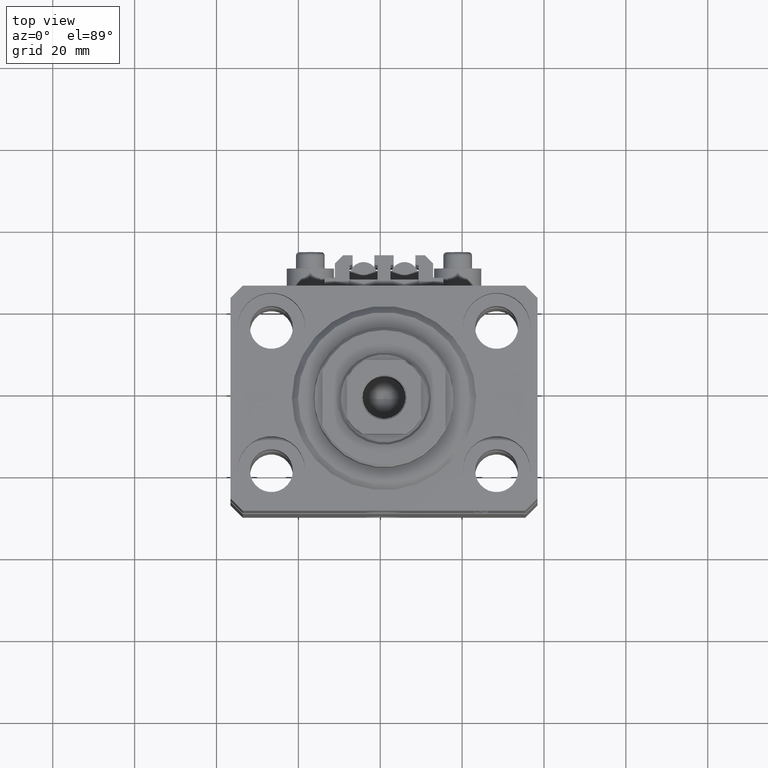
[diagram: clean part render]
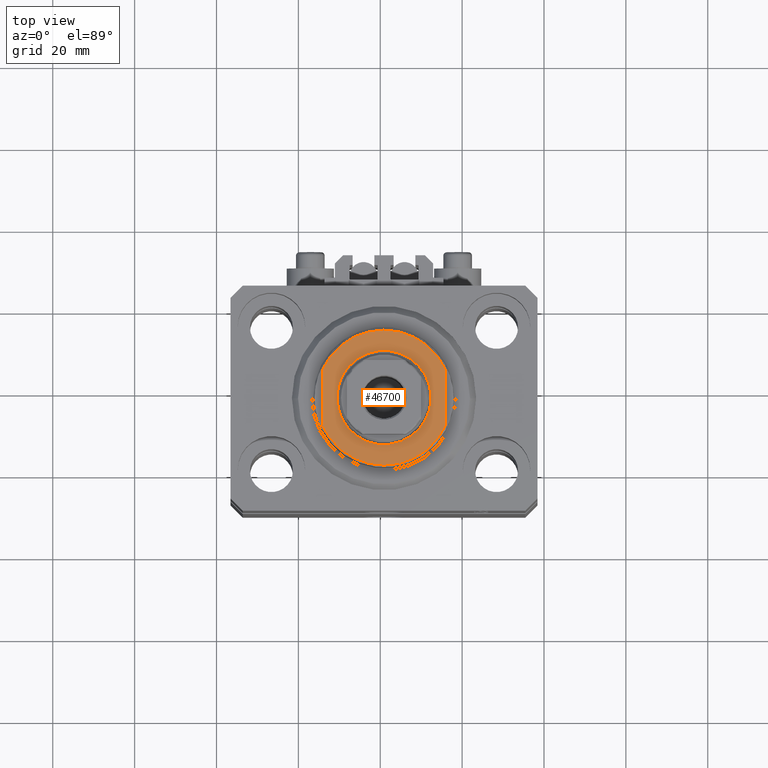
[diagram: same view with one face highlighted and labeled with its STEP entity id]
A machine part, top view. The second image highlights one B-rep face of the part: STEP entity #46700.
In plain terms, the highlighted planar face has unit normal (0, 0, 1).
Its self-contained STEP definition (entity closure, byte-faithful):
#525 = VERTEX_POINT ( 'NONE', #43512 ) ;
#949 = VERTEX_POINT ( 'NONE', #10566 ) ;
#1073 = ORIENTED_EDGE ( 'NONE', *, *, #18223, .T. ) ;
#2415 = EDGE_CURVE ( 'NONE', #36443, #42790, #34471, .T. ) ;
#2782 = DIRECTION ( 'NONE',  ( -0.000000000000000000, -0.000000000000000000, 1.000000000000000000 ) ) ;
#3260 = CARTESIAN_POINT ( 'NONE',  ( 0.000000000000000000, 0.000000000000000000, -8.000000000000000000 ) ) ;
#3401 = ORIENTED_EDGE ( 'NONE', *, *, #8841, .T. ) ;
#3919 = EDGE_LOOP ( 'NONE', ( #22346, #1073, #3401, #10840 ) ) ;
#5791 = DIRECTION ( 'NONE',  ( 0.000000000000000000, -1.000000000000000000, -0.000000000000000000 ) ) ;
#6167 = DIRECTION ( 'NONE',  ( 0.000000000000000000, 0.000000000000000000, -1.000000000000000000 ) ) ;
#7159 = DIRECTION ( 'NONE',  ( -1.000000000000000000, 0.000000000000000000, 0.000000000000000000 ) ) ;
#7283 = VECTOR ( 'NONE', #28034, 1000.000000000000000 ) ;
#7455 = AXIS2_PLACEMENT_3D ( 'NONE', #46164, #24482, #17414 ) ;
#7500 = CARTESIAN_POINT ( 'NONE',  ( -11.50000000000000355, 0.000000000000000000, -8.000000000000000000 ) ) ;
#8145 = CARTESIAN_POINT ( 'NONE',  ( 0.000000000000000000, 0.000000000000000000, -8.000000000000000000 ) ) ;
#8841 = EDGE_CURVE ( 'NONE', #949, #525, #28455, .T. ) ;
#9821 = PLANE ( 'NONE',  #19082 ) ;
#10566 = CARTESIAN_POINT ( 'NONE',  ( 14.99999999999999645, -6.873863542433765517, -8.000000000000000000 ) ) ;
#10840 = ORIENTED_EDGE ( 'NONE', *, *, #42666, .F. ) ;
#11139 = AXIS2_PLACEMENT_3D ( 'NONE', #3260, #2782, #7159 ) ;
#12303 = VECTOR ( 'NONE', #5791, 1000.000000000000000 ) ;
#12989 = FACE_BOUND ( 'NONE', #15102, .T. ) ;
#15102 = EDGE_LOOP ( 'NONE', ( #30442, #37028 ) ) ;
#15543 = CIRCLE ( 'NONE', #21771, 16.50000000000000000 ) ;
#15975 = EDGE_CURVE ( 'NONE', #42790, #36443, #38702, .T. ) ;
#17414 = DIRECTION ( 'NONE',  ( -1.000000000000000000, 0.000000000000000000, 0.000000000000000000 ) ) ;
#18223 = EDGE_CURVE ( 'NONE', #35896, #949, #27963, .T. ) ;
#19082 = AXIS2_PLACEMENT_3D ( 'NONE', #35642, #6167, #20548 ) ;
#20490 = LINE ( 'NONE', #27551, #7283 ) ;
#20548 = DIRECTION ( 'NONE',  ( -1.000000000000000000, 0.000000000000000000, -0.000000000000000000 ) ) ;
#20561 = EDGE_CURVE ( 'NONE', #38007, #35896, #15543, .T. ) ;
#21771 = AXIS2_PLACEMENT_3D ( 'NONE', #43177, #31306, #35870 ) ;
#22346 = ORIENTED_EDGE ( 'NONE', *, *, #20561, .T. ) ;
#24482 = DIRECTION ( 'NONE',  ( 0.000000000000000000, 0.000000000000000000, -1.000000000000000000 ) ) ;
#27551 = CARTESIAN_POINT ( 'NONE',  ( -15.00000000000000000, -42.42640687119285303, -8.000000000000000000 ) ) ;
#27963 = LINE ( 'NONE', #38684, #12303 ) ;
#28034 = DIRECTION ( 'NONE',  ( -0.000000000000000000, -1.000000000000000000, -0.000000000000000000 ) ) ;
#28455 = CIRCLE ( 'NONE', #7455, 16.50000000000000000 ) ;
#30442 = ORIENTED_EDGE ( 'NONE', *, *, #2415, .T. ) ;
#31036 = DIRECTION ( 'NONE',  ( -1.000000000000000000, 0.000000000000000000, 0.000000000000000000 ) ) ;
#31306 = DIRECTION ( 'NONE',  ( 0.000000000000000000, 0.000000000000000000, -1.000000000000000000 ) ) ;
#34471 = CIRCLE ( 'NONE', #11139, 11.50000000000000355 ) ;
#35642 = CARTESIAN_POINT ( 'NONE',  ( 0.000000000000000000, 0.000000000000000000, -8.000000000000000000 ) ) ;
#35870 = DIRECTION ( 'NONE',  ( -1.000000000000000000, 0.000000000000000000, 0.000000000000000000 ) ) ;
#35896 = VERTEX_POINT ( 'NONE', #46312 ) ;
#36443 = VERTEX_POINT ( 'NONE', #7500 ) ;
#37028 = ORIENTED_EDGE ( 'NONE', *, *, #15975, .T. ) ;
#38007 = VERTEX_POINT ( 'NONE', #47763 ) ;
#38684 = CARTESIAN_POINT ( 'NONE',  ( 15.00000000000000000, -42.42640687119285303, -8.000000000000000000 ) ) ;
#38702 = CIRCLE ( 'NONE', #41838, 11.50000000000000355 ) ;
#41838 = AXIS2_PLACEMENT_3D ( 'NONE', #8145, #42239, #31036 ) ;
#42239 = DIRECTION ( 'NONE',  ( -0.000000000000000000, -0.000000000000000000, 1.000000000000000000 ) ) ;
#42666 = EDGE_CURVE ( 'NONE', #38007, #525, #20490, .T. ) ;
#42709 = FACE_OUTER_BOUND ( 'NONE', #3919, .T. ) ;
#42790 = VERTEX_POINT ( 'NONE', #44265 ) ;
#43177 = CARTESIAN_POINT ( 'NONE',  ( 0.000000000000000000, 0.000000000000000000, -8.000000000000000000 ) ) ;
#43512 = CARTESIAN_POINT ( 'NONE',  ( -14.99999999999999645, -6.873863542433765517, -8.000000000000000000 ) ) ;
#44265 = CARTESIAN_POINT ( 'NONE',  ( 11.50000000000000355, 1.408343819019456570E-15, -8.000000000000000000 ) ) ;
#46164 = CARTESIAN_POINT ( 'NONE',  ( 0.000000000000000000, 0.000000000000000000, -8.000000000000000000 ) ) ;
#46312 = CARTESIAN_POINT ( 'NONE',  ( 14.99999999999999645, 6.873863542433765517, -8.000000000000000000 ) ) ;
#46700 = ADVANCED_FACE ( 'NONE', ( #12989, #42709 ), #9821, .T. ) ;
#47763 = CARTESIAN_POINT ( 'NONE',  ( -14.99999999999999645, 6.873863542433765517, -8.000000000000000000 ) ) ;